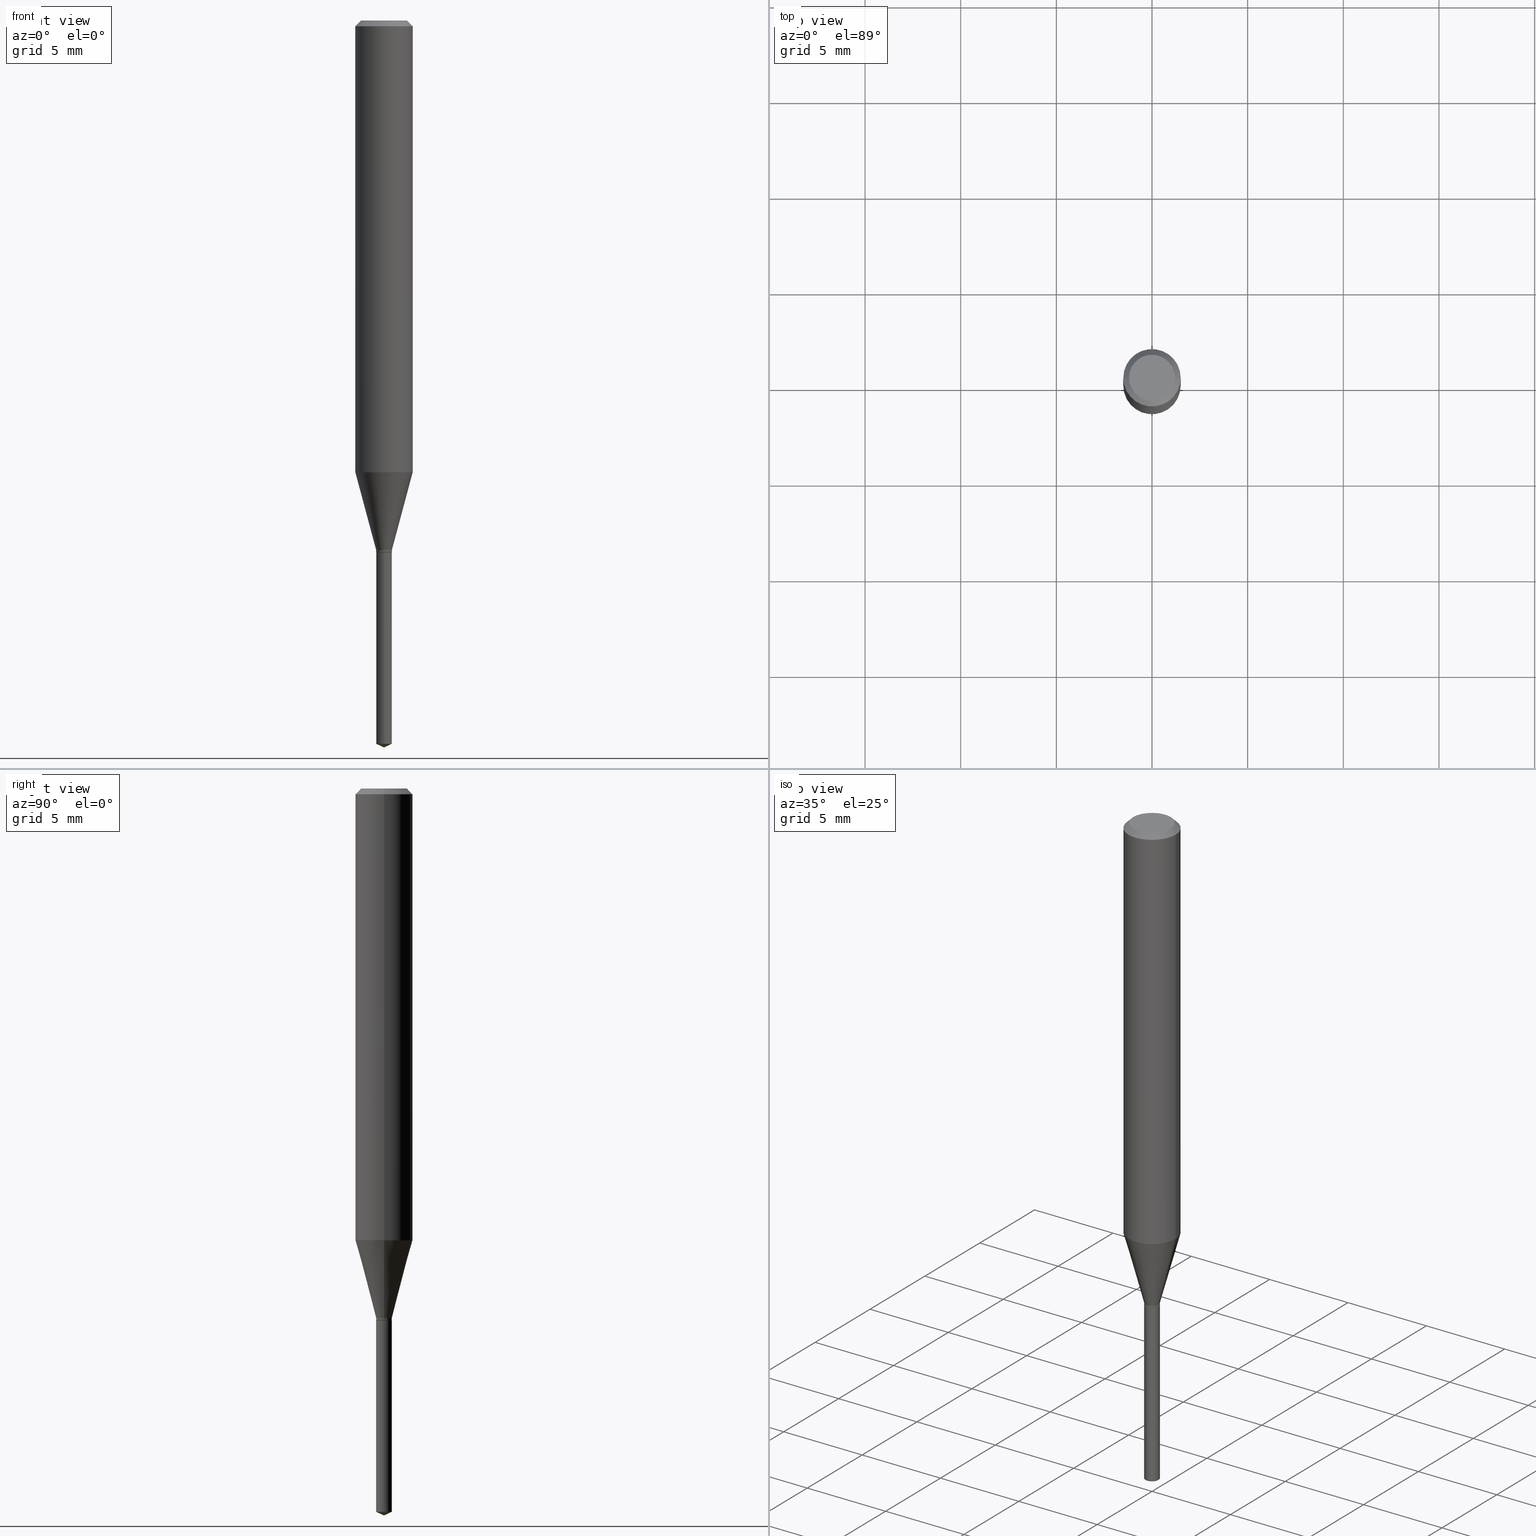
[diagram: canonical four-view strip — front | top / right | iso, engineering-drawing reading convention]
A machine part, canonical four-view strip (front | top / right | iso — engineering-drawing reading convention). The complete STEP part file that produces these views, byte-faithful:
ISO-10303-21;
HEADER;
FILE_DESCRIPTION (( 'STEP AP203' ),
    '1' );
FILE_NAME ('07459.STEP',
    '2024-04-23T21:40:39',
    ( '' ),
    ( '' ),
    'SwSTEP 2.0',
    'SolidWorks 2023',
    '' );
FILE_SCHEMA (( 'CONFIG_CONTROL_DESIGN' ));
ENDSEC;

DATA;
#1 = DIRECTION ( 'NONE',  ( -6.982962677686265922E-15, -1.000000000000000000, 3.520397390770365123E-15 ) ) ;
#2 = ORIENTED_EDGE ( 'NONE', *, *, #358, .T. ) ;
#3 = AXIS2_PLACEMENT_3D ( 'NONE', #360, #94, #160 ) ;
#4 = DIRECTION ( 'NONE',  ( -1.000000000000000000, 6.982962677686265922E-15, -4.876176775795935793E-29 ) ) ;
#5 = EDGE_CURVE ( 'NONE', #388, #339, #249, .T. ) ;
#6 = CARTESIAN_POINT ( 'NONE',  ( 3.658668015054778287E-29, -5.223602213574301462E-15, -1.496099999999999985 ) ) ;
#7 = SHAPE_DEFINITION_REPRESENTATION ( #450, #448 ) ;
#8 = LINE ( 'NONE', #302, #411 ) ;
#9 = ORIENTED_EDGE ( 'NONE', *, *, #130, .F. ) ;
#10 = CARTESIAN_POINT ( 'NONE',  ( -0.01615000000000000116, -3.697421247990632246E-15, -1.089699999999999891 ) ) ;
#11 = VERTEX_POINT ( 'NONE', #79 ) ;
#12 = DIRECTION ( 'NONE',  ( 6.982962677686265922E-15, 1.000000000000000000, -3.491479321953280158E-15 ) ) ;
#13 = APPROVAL_PERSON_ORGANIZATION ( #133, #401, #176 ) ;
#14 = ADVANCED_FACE ( 'NONE', ( #105 ), #460, .T. ) ;
#15 = ORIENTED_EDGE ( 'NONE', *, *, #201, .F. ) ;
#16 = LINE ( 'NONE', #90, #66 ) ;
#17 = VERTEX_POINT ( 'NONE', #118 ) ;
#18 = PERSON_AND_ORGANIZATION_ROLE ( 'classification_officer' ) ;
#19 = DIRECTION ( 'NONE',  ( -1.000000000000000000, 6.982962677686266711E-15, 0.000000000000000000 ) ) ;
#20 = EDGE_LOOP ( 'NONE', ( #454, #2, #440, #473 ) ) ;
#21 = DIRECTION ( 'NONE',  ( 2.445468806185136597E-29, -3.491481338843145583E-15, -1.000000000000000000 ) ) ;
#22 = AXIS2_PLACEMENT_3D ( 'NONE', #385, #190, #1 ) ;
#23 = AXIS2_PLACEMENT_3D ( 'NONE', #298, #78, #375 ) ;
#24 = APPROVAL_ROLE ( '' ) ;
#25 = DIRECTION ( 'NONE',  ( -1.000000000000000000, 6.982962677686266711E-15, 0.000000000000000000 ) ) ;
#26 = PRODUCT_DEFINITION ( 'UNKNOWN', '', #146, #92 ) ;
#27 = VECTOR ( 'NONE', #459, 39.37007874015748854 ) ;
#28 = CIRCLE ( 'NONE', #335, 0.01565000000000000072 ) ;
#29 = PRODUCT ( '07459', '07459', '', ( #334 ) ) ;
#30 = PERSON_AND_ORGANIZATION_ROLE ( 'design_supplier' ) ;
#31 = CC_DESIGN_PERSON_AND_ORGANIZATION_ASSIGNMENT ( #178, #446, ( #26 ) ) ;
#32 = VERTEX_POINT ( 'NONE', #183 ) ;
#33 = DIRECTION ( 'NONE',  ( 1.000000000000000000, -6.982962677686266711E-15, 0.000000000000000000 ) ) ;
#34 = FACE_OUTER_BOUND ( 'NONE', #50, .T. ) ;
#35 = CARTESIAN_POINT ( 'NONE',  ( 2.888098660104663328E-31, -4.123439461173779030E-17, -0.01181000000000006871 ) ) ;
#36 = ADVANCED_FACE ( 'NONE', ( #34 ), #235, .T. ) ;
#37 = CARTESIAN_POINT ( 'NONE',  ( 8.265746106709734507E-48, -1.180129479067563789E-33, -3.380025165646692144E-19 ) ) ;
#38 = ORIENTED_EDGE ( 'NONE', *, *, #333, .T. ) ;
#39 = DIRECTION ( 'NONE',  ( -2.445470214571802396E-29, 3.491479321953280158E-15, 1.000000000000000000 ) ) ;
#40 = VERTEX_POINT ( 'NONE', #76 ) ;
#41 = CIRCLE ( 'NONE', #188, 0.01614999999999999769 ) ;
#42 = AXIS2_PLACEMENT_3D ( 'NONE', #479, #21, #19 ) ;
#43 = CARTESIAN_POINT ( 'NONE',  ( 2.676565608369631794E-29, -3.821426325363822773E-15, -1.094499999999999806 ) ) ;
#44 = ORIENTED_EDGE ( 'NONE', *, *, #149, .T. ) ;
#45 = LINE ( 'NONE', #348, #89 ) ;
#46 = DIRECTION ( 'NONE',  ( -2.445470214571802116E-29, 3.491479321953280158E-15, 1.000000000000000000 ) ) ;
#47 = ORIENTED_EDGE ( 'NONE', *, *, #59, .T. ) ;
#48 = LINE ( 'NONE', #56, #102 ) ;
#49 = DIRECTION ( 'NONE',  ( 1.000000000000000000, -6.982962677686266711E-15, 4.876176775795935793E-29 ) ) ;
#50 = EDGE_LOOP ( 'NONE', ( #280, #359, #239 ) ) ;
#51 = AXIS2_PLACEMENT_3D ( 'NONE', #489, #270, #423 ) ;
#52 = DIRECTION ( 'NONE',  ( -2.445468806185136877E-29, 3.491481338843145188E-15, 1.000000000000000000 ) ) ;
#53 = DIRECTION ( 'NONE',  ( -2.445468806185136597E-29, 3.491481338843145583E-15, 1.000000000000000000 ) ) ;
#54 = EDGE_LOOP ( 'NONE', ( #237, #422 ) ) ;
#55 = SECURITY_CLASSIFICATION_LEVEL ( 'unclassified' ) ;
#56 = CARTESIAN_POINT ( 'NONE',  ( 0.05905000000000005383, -4.123439461173744271E-16, 2.879382386107502672E-30 ) ) ;
#57 = EDGE_LOOP ( 'NONE', ( #310, #112, #378, #386 ) ) ;
#58 = FACE_OUTER_BOUND ( 'NONE', #354, .T. ) ;
#59 = EDGE_CURVE ( 'NONE', #11, #40, #8, .T. ) ;
#60 = FACE_OUTER_BOUND ( 'NONE', #202, .T. ) ;
#61 = DATE_AND_TIME ( #131, #362 ) ;
#62 = DATE_TIME_ROLE ( 'classification_date' ) ;
#63 = APPLICATION_PROTOCOL_DEFINITION ( 'international standard', 'config_control_design', 1994, #273 ) ;
#64 = EDGE_CURVE ( 'NONE', #299, #11, #463, .T. ) ;
#65 = DATE_TIME_ROLE ( 'creation_date' ) ;
#66 = VECTOR ( 'NONE', #128, 39.37007874015747433 ) ;
#67 = APPLICATION_PROTOCOL_DEFINITION ( 'international standard', 'config_control_design', 1994, #169 ) ;
#68 = ADVANCED_FACE ( 'NONE', ( #144 ), #233, .T. ) ;
#69 =( NAMED_UNIT ( * ) SI_UNIT ( $, .STERADIAN. ) SOLID_ANGLE_UNIT ( ) );
#70 = ORIENTED_EDGE ( 'NONE', *, *, #161, .F. ) ;
#71 = VECTOR ( 'NONE', #39, 39.37007874015748143 ) ;
#72 = VECTOR ( 'NONE', #52, 39.37007874015748143 ) ;
#73 = CARTESIAN_POINT ( 'NONE',  ( 0.01614999999999999769, -3.932455431939034345E-15, -1.093999999999999861 ) ) ;
#74 = ORIENTED_EDGE ( 'NONE', *, *, #240, .F. ) ;
#75 = CARTESIAN_POINT ( 'NONE',  ( 0.05904999999999999832, -4.463468013801466955E-16, -0.01181000000000006871 ) ) ;
#76 = CARTESIAN_POINT ( 'NONE',  ( -1.127748472446064261E-16, -0.01615000000000382102, -1.094499999999999806 ) ) ;
#77 = EDGE_LOOP ( 'NONE', ( #205, #228, #47, #15 ) ) ;
#78 = DIRECTION ( 'NONE',  ( -2.438088387897960049E-29, 3.491481338843145188E-15, 1.000000000000000000 ) ) ;
#79 = CARTESIAN_POINT ( 'NONE',  ( -1.127748472445968119E-16, -0.01615000000000519839, -1.488569131320796934 ) ) ;
#80 = EDGE_LOOP ( 'NONE', ( #162, #409, #70, #303 ) ) ;
#81 = CC_DESIGN_APPROVAL ( #113, ( #26 ) ) ;
#82 = CARTESIAN_POINT ( 'NONE',  ( 1.147526518252926484E-16, 0.01614999999999618130, -1.094499999999999806 ) ) ;
#83 = DIRECTION ( 'NONE',  ( 1.000000000000000000, -6.982962677686274599E-15, 0.000000000000000000 ) ) ;
#84 = ORIENTED_EDGE ( 'NONE', *, *, #358, .F. ) ;
#85 = CYLINDRICAL_SURFACE ( 'NONE', #466, 0.01614999999999999769 ) ;
#86 = ORIENTED_EDGE ( 'NONE', *, *, #432, .T. ) ;
#87 = FACE_OUTER_BOUND ( 'NONE', #80, .T. ) ;
#88 = VERTEX_POINT ( 'NONE', #73 ) ;
#89 = VECTOR ( 'NONE', #193, 39.37007874015748854 ) ;
#90 = CARTESIAN_POINT ( 'NONE',  ( -0.01615000000000000116, -3.689914563112119387E-15, -1.089699999999999891 ) ) ;
#91 = EDGE_CURVE ( 'NONE', #115, #285, #124, .T. ) ;
#92 = DESIGN_CONTEXT ( 'detailed design', #169, 'design' ) ;
#93 = ORIENTED_EDGE ( 'NONE', *, *, #252, .F. ) ;
#94 = DIRECTION ( 'NONE',  ( -2.445470214571802116E-29, 3.491479321953280158E-15, 1.000000000000000000 ) ) ;
#95 = PLANE ( 'NONE',  #175 ) ;
#96 = CARTESIAN_POINT ( 'NONE',  ( 0.000000000000000000, 0.000000000000000000, 0.000000000000000000 ) ) ;
#97 = PERSON_AND_ORGANIZATION_ROLE ( 'design_owner' ) ;
#98 = CC_DESIGN_APPROVAL ( #401, ( #210 ) ) ;
#99 =( LENGTH_UNIT ( ) NAMED_UNIT ( * ) SI_UNIT ( $, .METRE. ) );
#100 = COORDINATED_UNIVERSAL_TIME_OFFSET ( 5, 0, .BEHIND. ) ;
#101 = APPROVAL_DATE_TIME ( #449, #347 ) ;
#102 = VECTOR ( 'NONE', #164, 39.37007874015748143 ) ;
#103 = CARTESIAN_POINT ( 'NONE',  ( -0.01565000000000000072, -3.710226387217366719E-15, -1.094499999999999806 ) ) ;
#104 = CARTESIAN_POINT ( 'NONE',  ( 3.658667988020872822E-29, -5.223602213574301462E-15, -1.496099999999999985 ) ) ;
#105 = FACE_OUTER_BOUND ( 'NONE', #431, .T. ) ;
#106 = VECTOR ( 'NONE', #260, 39.37007874015748854 ) ;
#107 = LINE ( 'NONE', #75, #126 ) ;
#108 = CARTESIAN_POINT ( 'NONE',  ( 3.640249931496824443E-29, -5.197310548790477379E-15, -1.488569131320796934 ) ) ;
#109 = VERTEX_POINT ( 'NONE', #458 ) ;
#110 = FACE_OUTER_BOUND ( 'NONE', #344, .T. ) ;
#111 = DIRECTION ( 'NONE',  ( -2.445468806185136597E-29, 3.491481338843145583E-15, 1.000000000000000000 ) ) ;
#112 = ORIENTED_EDGE ( 'NONE', *, *, #197, .F. ) ;
#113 = APPROVAL ( #173, 'UNSPECIFIED' ) ;
#114 = LINE ( 'NONE', #336, #199 ) ;
#115 = VERTEX_POINT ( 'NONE', #453 ) ;
#116 = AXIS2_PLACEMENT_3D ( 'NONE', #122, #357, #25 ) ;
#117 = DIRECTION ( 'NONE',  ( 1.000000000000000000, -6.982962677686267499E-15, 4.876176775795935793E-29 ) ) ;
#118 = CARTESIAN_POINT ( 'NONE',  ( 0.01565000000000000072, -3.930709691269612841E-15, -1.094499999999999806 ) ) ;
#119 = DIRECTION ( 'NONE',  ( -2.445468806185136597E-29, 3.491481338843145583E-15, 1.000000000000000000 ) ) ;
#120 = DIRECTION ( 'NONE',  ( -2.445468806185136877E-29, 3.491481338843145188E-15, 1.000000000000000000 ) ) ;
#121 = ORIENTED_EDGE ( 'NONE', *, *, #333, .F. ) ;
#122 = CARTESIAN_POINT ( 'NONE',  ( 2.888098660104663328E-31, -4.123439461173779030E-17, -0.01181000000000006871 ) ) ;
#123 = ORIENTED_EDGE ( 'NONE', *, *, #201, .T. ) ;
#124 = CIRCLE ( 'NONE', #261, 0.05905000000000010935 ) ;
#125 = DIRECTION ( 'NONE',  ( 1.000000000000000000, -6.982962677686273810E-15, 0.000000000000000000 ) ) ;
#126 = VECTOR ( 'NONE', #412, 39.37007874015748143 ) ;
#127 = ORIENTED_EDGE ( 'NONE', *, *, #326, .F. ) ;
#128 = DIRECTION ( 'NONE',  ( -0.2588190451025213501, 5.211531920934551042E-15, 0.9659258262890682012 ) ) ;
#129 = APPROVAL_STATUS ( 'not_yet_approved' ) ;
#130 = EDGE_CURVE ( 'NONE', #159, #244, #315, .T. ) ;
#131 = CALENDAR_DATE ( 2024, 23, 4 ) ;
#132 = AXIS2_PLACEMENT_3D ( 'NONE', #340, #382, #226 ) ;
#133 = PERSON_AND_ORGANIZATION ( #369, #236 ) ;
#134 = COORDINATED_UNIVERSAL_TIME_OFFSET ( 5, 0, .BEHIND. ) ;
#135 = DIRECTION ( 'NONE',  ( -2.445468806185136597E-29, 3.491481338843145583E-15, 1.000000000000000000 ) ) ;
#136 = EDGE_CURVE ( 'NONE', #32, #11, #476, .T. ) ;
#137 = AXIS2_PLACEMENT_3D ( 'NONE', #238, #46, #194 ) ;
#138 = CC_DESIGN_APPROVAL ( #347, ( #146 ) ) ;
#139 = ORIENTED_EDGE ( 'NONE', *, *, #268, .F. ) ;
#140 = DIRECTION ( 'NONE',  ( 1.000000000000000000, -6.982962677686274599E-15, 0.000000000000000000 ) ) ;
#141 = EDGE_CURVE ( 'NONE', #370, #159, #114, .T. ) ;
#142 = ORIENTED_EDGE ( 'NONE', *, *, #365, .T. ) ;
#143 = DIRECTION ( 'NONE',  ( -2.445470214571802116E-29, 3.491479321953280158E-15, 1.000000000000000000 ) ) ;
#144 = FACE_OUTER_BOUND ( 'NONE', #464, .T. ) ;
#145 = AXIS2_PLACEMENT_3D ( 'NONE', #416, #457, #267 ) ;
#146 = PRODUCT_DEFINITION_FORMATION_WITH_SPECIFIED_SOURCE ( 'ANY', '', #29, .NOT_KNOWN. ) ;
#147 = CARTESIAN_POINT ( 'NONE',  ( 0.01615000000000000116, -3.917442062182008625E-15, -1.089699999999999891 ) ) ;
#148 = CARTESIAN_POINT ( 'NONE',  ( 4.132873053354867254E-48, -5.900647395337818946E-34, -1.690012582823346072E-19 ) ) ;
#149 = EDGE_CURVE ( 'NONE', #32, #246, #379, .T. ) ;
#150 = CARTESIAN_POINT ( 'NONE',  ( 2.676565608369631794E-29, -3.821426325363822773E-15, -1.094499999999999806 ) ) ;
#151 = CARTESIAN_POINT ( 'NONE',  ( 2.273295624663911029E-29, -3.245663666252026879E-15, -0.9295950203552949542 ) ) ;
#152 = ORIENTED_EDGE ( 'NONE', *, *, #91, .T. ) ;
#153 = CARTESIAN_POINT ( 'NONE',  ( 0.000000000000000000, 0.000000000000000000, 0.000000000000000000 ) ) ;
#154 = DIRECTION ( 'NONE',  ( -2.445470214571802396E-29, 3.491479321953280158E-15, 1.000000000000000000 ) ) ;
#155 = EDGE_LOOP ( 'NONE', ( #321, #478, #471, #139 ) ) ;
#156 = AXIS2_PLACEMENT_3D ( 'NONE', #439, #143, #186 ) ;
#157 = AXIS2_PLACEMENT_3D ( 'NONE', #35, #189, #33 ) ;
#158 = DIRECTION ( 'NONE',  ( -2.445468806185136597E-29, 3.491481338843145583E-15, 1.000000000000000000 ) ) ;
#159 = VERTEX_POINT ( 'NONE', #10 ) ;
#160 = DIRECTION ( 'NONE',  ( -6.982962677686265922E-15, -1.000000000000000000, 0.000000000000000000 ) ) ;
#161 = EDGE_CURVE ( 'NONE', #244, #159, #174, .T. ) ;
#162 = ORIENTED_EDGE ( 'NONE', *, *, #470, .T. ) ;
#163 = COORDINATED_UNIVERSAL_TIME_OFFSET ( 5, 0, .BEHIND. ) ;
#164 = DIRECTION ( 'NONE',  ( -2.445468806185136877E-29, 3.491481338843145188E-15, 1.000000000000000000 ) ) ;
#165 = ORIENTED_EDGE ( 'NONE', *, *, #408, .T. ) ;
#166 = AXIS2_PLACEMENT_3D ( 'NONE', #314, #263, #223 ) ;
#167 = DIRECTION ( 'NONE',  ( -2.445468806185136597E-29, 3.491481338843145583E-15, 1.000000000000000000 ) ) ;
#168 = CIRCLE ( 'NONE', #296, 0.01614999999999999769 ) ;
#169 = APPLICATION_CONTEXT ( 'configuration controlled 3d designs of mechanical parts and assemblies' ) ;
#170 =( NAMED_UNIT ( * ) PLANE_ANGLE_UNIT ( ) SI_UNIT ( $, .RADIAN. ) );
#171 = EDGE_CURVE ( 'NONE', #109, #219, #434, .T. ) ;
#172 = CYLINDRICAL_SURFACE ( 'NONE', #413, 0.05905000000000005383 ) ;
#173 = APPROVAL_STATUS ( 'not_yet_approved' ) ;
#174 = CIRCLE ( 'NONE', #404, 0.01615000000000000116 ) ;
#175 = AXIS2_PLACEMENT_3D ( 'NONE', #209, #363, #12 ) ;
#176 = APPROVAL_ROLE ( '' ) ;
#177 = EDGE_CURVE ( 'NONE', #370, #88, #41, .T. ) ;
#178 = PERSON_AND_ORGANIZATION ( #369, #236 ) ;
#179 = CIRCLE ( 'NONE', #137, 0.01615000000000000116 ) ;
#180 = LOCAL_TIME ( 17, 40, 39.00000000000000000, #163 ) ;
#181 = ORIENTED_EDGE ( 'NONE', *, *, #289, .F. ) ;
#182 = LINE ( 'NONE', #300, #283 ) ;
#183 = CARTESIAN_POINT ( 'NONE',  ( 1.147526518252925498E-16, 0.01614999999999480393, -1.488569131320796934 ) ) ;
#184 = DIRECTION ( 'NONE',  ( 1.000000000000000000, -6.982962677686266711E-15, 4.876185090822587894E-29 ) ) ;
#185 = ORIENTED_EDGE ( 'NONE', *, *, #220, .T. ) ;
#186 = DIRECTION ( 'NONE',  ( -6.982962677686265922E-15, -1.000000000000000000, 0.000000000000000000 ) ) ;
#187 = CARTESIAN_POINT ( 'NONE',  ( 2.675342873966538993E-29, -3.819680584694400481E-15, -1.093999999999999861 ) ) ;
#188 = AXIS2_PLACEMENT_3D ( 'NONE', #187, #307, #374 ) ;
#189 = DIRECTION ( 'NONE',  ( -2.445468806185136597E-29, 3.491481338843145583E-15, 1.000000000000000000 ) ) ;
#190 = DIRECTION ( 'NONE',  ( -2.445470214571802116E-29, 3.491479321953280158E-15, 1.000000000000000000 ) ) ;
#191 = ORIENTED_EDGE ( 'NONE', *, *, #234, .T. ) ;
#192 = ADVANCED_FACE ( 'NONE', ( #227 ), #377, .F. ) ;
#193 = DIRECTION ( 'NONE',  ( 0.7071067811865202613, -2.468850131081971887E-15, 0.7071067811865746622 ) ) ;
#194 = DIRECTION ( 'NONE',  ( -6.982962677686265922E-15, -1.000000000000000000, 0.000000000000000000 ) ) ;
#195 = ORIENTED_EDGE ( 'NONE', *, *, #408, .F. ) ;
#196 = CARTESIAN_POINT ( 'NONE',  ( 2.664827358099943030E-29, -3.804667214937374761E-15, -1.089699999999999891 ) ) ;
#197 = EDGE_CURVE ( 'NONE', #219, #109, #371, .T. ) ;
#198 = ORIENTED_EDGE ( 'NONE', *, *, #177, .F. ) ;
#199 = VECTOR ( 'NONE', #309, 39.37007874015748143 ) ;
#200 = CARTESIAN_POINT ( 'NONE',  ( -0.01614999999999999769, -3.697421247990632246E-15, -1.093999999999999861 ) ) ;
#201 = EDGE_CURVE ( 'NONE', #246, #40, #179, .T. ) ;
#202 = EDGE_LOOP ( 'NONE', ( #231, #123 ) ) ;
#203 = PERSON_AND_ORGANIZATION ( #369, #236 ) ;
#204 = CARTESIAN_POINT ( 'NONE',  ( 2.675342873966538993E-29, -3.819680584694400481E-15, -1.093999999999999861 ) ) ;
#205 = ORIENTED_EDGE ( 'NONE', *, *, #149, .F. ) ;
#206 = DIRECTION ( 'NONE',  ( 0.2588190451025213501, 1.565188264969621968E-15, 0.9659258262890682012 ) ) ;
#207 = CC_DESIGN_PERSON_AND_ORGANIZATION_ASSIGNMENT ( #254, #97, ( #29 ) ) ;
#208 = AXIS2_PLACEMENT_3D ( 'NONE', #96, #53, #49 ) ;
#209 = CARTESIAN_POINT ( 'NONE',  ( 2.676565608369631794E-29, -3.821426325363822773E-15, -1.094499999999999806 ) ) ;
#210 = SECURITY_CLASSIFICATION ( '', '', #55 ) ;
#211 = CARTESIAN_POINT ( 'NONE',  ( -0.04724000000000000421, 3.504923541997677355E-16, -3.380025165670481712E-19 ) ) ;
#212 =( CONVERSION_BASED_UNIT ( 'INCH', #288 ) LENGTH_UNIT ( ) NAMED_UNIT ( #380 ) );
#213 = FACE_OUTER_BOUND ( 'NONE', #242, .T. ) ;
#214 = AXIS2_PLACEMENT_3D ( 'NONE', #337, #111, #428 ) ;
#215 = LOCAL_TIME ( 17, 40, 39.00000000000000000, #100 ) ;
#216 = ADVANCED_FACE ( 'NONE', ( #349 ), #481, .T. ) ;
#217 = PERSON_AND_ORGANIZATION_ROLE ( 'creator' ) ;
#218 = CC_DESIGN_DATE_AND_TIME_ASSIGNMENT ( #474, #62, ( #210 ) ) ;
#219 = VERTEX_POINT ( 'NONE', #211 ) ;
#220 = EDGE_CURVE ( 'NONE', #11, #32, #272, .T. ) ;
#221 = FACE_OUTER_BOUND ( 'NONE', #54, .T. ) ;
#222 = AXIS2_PLACEMENT_3D ( 'NONE', #350, #119, #278 ) ;
#223 = DIRECTION ( 'NONE',  ( 1.000000000000000000, -6.982962677686266711E-15, 4.876185090822587894E-29 ) ) ;
#224 = AXIS2_PLACEMENT_3D ( 'NONE', #433, #241, #389 ) ;
#225 = EDGE_LOOP ( 'NONE', ( #325, #346 ) ) ;
#226 = DIRECTION ( 'NONE',  ( 1.000000000000000000, -6.982962677686273810E-15, 0.000000000000000000 ) ) ;
#227 = FACE_OUTER_BOUND ( 'NONE', #225, .T. ) ;
#228 = ORIENTED_EDGE ( 'NONE', *, *, #136, .T. ) ;
#229 = FACE_OUTER_BOUND ( 'NONE', #468, .T. ) ;
#230 = DIRECTION ( 'NONE',  ( -6.982962677686265922E-15, -1.000000000000000000, 0.000000000000000000 ) ) ;
#231 = ORIENTED_EDGE ( 'NONE', *, *, #326, .T. ) ;
#232 = LINE ( 'NONE', #6, #106 ) ;
#233 = CYLINDRICAL_SURFACE ( 'NONE', #214, 0.01614999999999999769 ) ;
#234 = EDGE_CURVE ( 'NONE', #426, #17, #424, .T. ) ;
#235 = CONICAL_SURFACE ( 'NONE', #22, 84.42940631927646677, 1.134464013796325554 ) ;
#236 = ORGANIZATION ( 'UNSPECIFIED', 'UNSPECIFIED', '' ) ;
#237 = ORIENTED_EDGE ( 'NONE', *, *, #403, .F. ) ;
#238 = CARTESIAN_POINT ( 'NONE',  ( 2.676565608369631794E-29, -3.821426325363822773E-15, -1.094499999999999806 ) ) ;
#239 = ORIENTED_EDGE ( 'NONE', *, *, #136, .F. ) ;
#240 = EDGE_CURVE ( 'NONE', #285, #115, #484, .T. ) ;
#241 = DIRECTION ( 'NONE',  ( -2.445470214571802116E-29, 3.491479321953280158E-15, 1.000000000000000000 ) ) ;
#242 = EDGE_LOOP ( 'NONE', ( #84, #152, #86, #181 ) ) ;
#243 = DIRECTION ( 'NONE',  ( -2.445468806185136597E-29, 3.491481338843145583E-15, 1.000000000000000000 ) ) ;
#244 = VERTEX_POINT ( 'NONE', #147 ) ;
#245 = LOCAL_TIME ( 17, 40, 39.00000000000000000, #332 ) ;
#246 = VERTEX_POINT ( 'NONE', #82 ) ;
#247 = CARTESIAN_POINT ( 'NONE',  ( 0.01614999999999999769, -1.127748472446331981E-16, 7.875025492910434806E-31 ) ) ;
#248 = DIRECTION ( 'NONE',  ( -2.445468806185136597E-29, 3.491481338843145583E-15, 1.000000000000000000 ) ) ;
#249 = CIRCLE ( 'NONE', #222, 0.05904999999999999832 ) ;
#250 = PERSON_AND_ORGANIZATION ( #369, #236 ) ;
#251 = CONICAL_SURFACE ( 'NONE', #42, 0.05904999999999999832, 0.7853981633974452814 ) ;
#252 = EDGE_CURVE ( 'NONE', #426, #370, #259, .T. ) ;
#253 = CALENDAR_DATE ( 2024, 23, 4 ) ;
#254 = PERSON_AND_ORGANIZATION ( #369, #236 ) ;
#255 = VECTOR ( 'NONE', #414, 39.37007874015748143 ) ;
#256 = PRODUCT_RELATED_PRODUCT_CATEGORY ( 'detail', '', ( #29 ) ) ;
#257 = ADVANCED_FACE ( 'NONE', ( #110 ), #366, .T. ) ;
#258 = COORDINATED_UNIVERSAL_TIME_OFFSET ( 5, 0, .BEHIND. ) ;
#259 = LINE ( 'NONE', #103, #27 ) ;
#260 = DIRECTION ( 'NONE',  ( 6.439704144417058752E-15, 0.9063077870366562649, 0.4226182617406860076 ) ) ;
#261 = AXIS2_PLACEMENT_3D ( 'NONE', #151, #305, #269 ) ;
#262 = AXIS2_PLACEMENT_3D ( 'NONE', #475, #248, #125 ) ;
#263 = DIRECTION ( 'NONE',  ( -2.445468806185136597E-29, 3.491481338843145583E-15, 1.000000000000000000 ) ) ;
#264 = ORIENTED_EDGE ( 'NONE', *, *, #161, .T. ) ;
#265 = DIRECTION ( 'NONE',  ( -2.445468806185136597E-29, 3.491481338843145583E-15, 1.000000000000000000 ) ) ;
#266 = ORIENTED_EDGE ( 'NONE', *, *, #64, .F. ) ;
#267 = DIRECTION ( 'NONE',  ( 1.000000000000000000, -6.982962677686274599E-15, 0.000000000000000000 ) ) ;
#268 = EDGE_CURVE ( 'NONE', #17, #88, #45, .T. ) ;
#269 = DIRECTION ( 'NONE',  ( 1.000000000000000000, -6.982962677686267499E-15, 0.000000000000000000 ) ) ;
#270 = DIRECTION ( 'NONE',  ( -2.445468806185136597E-29, 3.491481338843145583E-15, 1.000000000000000000 ) ) ;
#271 = CARTESIAN_POINT ( 'NONE',  ( 1.147526518252829356E-16, 0.01614999999999617783, -1.094499999999999806 ) ) ;
#272 = CIRCLE ( 'NONE', #156, 0.01615000000000000116 ) ;
#273 = APPLICATION_CONTEXT ( 'configuration controlled 3d designs of mechanical parts and assemblies' ) ;
#274 = VECTOR ( 'NONE', #206, 39.37007874015747433 ) ;
#275 = ORIENTED_EDGE ( 'NONE', *, *, #171, .F. ) ;
#276 = DIRECTION ( 'NONE',  ( -6.982962677686265922E-15, -1.000000000000000000, 0.000000000000000000 ) ) ;
#277 = CARTESIAN_POINT ( 'NONE',  ( 2.664827358099943030E-29, -3.804667214937374761E-15, -1.089699999999999891 ) ) ;
#278 = DIRECTION ( 'NONE',  ( 1.000000000000000000, -6.982962677686266711E-15, 0.000000000000000000 ) ) ;
#279 = DIRECTION ( 'NONE',  ( 1.000000000000000000, -6.982962677686273810E-15, 0.000000000000000000 ) ) ;
#280 = ORIENTED_EDGE ( 'NONE', *, *, #297, .F. ) ;
#281 = LINE ( 'NONE', #323, #274 ) ;
#282 = ORIENTED_EDGE ( 'NONE', *, *, #177, .T. ) ;
#283 = VECTOR ( 'NONE', #452, 39.37007874015748143 ) ;
#284 = FACE_OUTER_BOUND ( 'NONE', #77, .T. ) ;
#285 = VERTEX_POINT ( 'NONE', #410 ) ;
#286 = DIRECTION ( 'NONE',  ( -2.445468806185136597E-29, 3.491481338843145583E-15, 1.000000000000000000 ) ) ;
#287 = ADVANCED_FACE ( 'NONE', ( #221 ), #419, .F. ) ;
#288 = LENGTH_MEASURE_WITH_UNIT ( LENGTH_MEASURE( 0.02539999999999999897 ), #99 );
#289 = EDGE_CURVE ( 'NONE', #339, #388, #405, .T. ) ;
#290 = CARTESIAN_POINT ( 'NONE',  ( 0.000000000000000000, 0.000000000000000000, 0.000000000000000000 ) ) ;
#291 = LOCAL_TIME ( 17, 40, 39.00000000000000000, #258 ) ;
#292 = EDGE_CURVE ( 'NONE', #219, #339, #182, .T. ) ;
#293 = PERSON_AND_ORGANIZATION ( #369, #236 ) ;
#294 = DIRECTION ( 'NONE',  ( 1.000000000000000000, -6.982962677686266711E-15, 4.876176775795935793E-29 ) ) ;
#295 = AXIS2_PLACEMENT_3D ( 'NONE', #490, #265, #140 ) ;
#296 = AXIS2_PLACEMENT_3D ( 'NONE', #204, #158, #318 ) ;
#297 = EDGE_CURVE ( 'NONE', #299, #32, #232, .T. ) ;
#298 = CARTESIAN_POINT ( 'NONE',  ( 2.676565608369631794E-29, -3.821426325363822773E-15, -1.094499999999999806 ) ) ;
#299 = VERTEX_POINT ( 'NONE', #104 ) ;
#300 = CARTESIAN_POINT ( 'NONE',  ( -0.05904999999999999832, 3.711095515056362547E-16, -0.01181000000000006871 ) ) ;
#301 = APPROVAL_DATE_TIME ( #304, #401 ) ;
#302 = CARTESIAN_POINT ( 'NONE',  ( -1.127748472446064261E-16, -0.01615000000000382102, -1.094499999999999806 ) ) ;
#303 = ORIENTED_EDGE ( 'NONE', *, *, #365, .F. ) ;
#304 = DATE_AND_TIME ( #407, #291 ) ;
#305 = DIRECTION ( 'NONE',  ( -2.445468806185136597E-29, 3.491481338843145583E-15, 1.000000000000000000 ) ) ;
#306 = EDGE_CURVE ( 'NONE', #109, #388, #107, .T. ) ;
#307 = DIRECTION ( 'NONE',  ( -2.445468806185136597E-29, 3.491481338843145583E-15, 1.000000000000000000 ) ) ;
#308 = DIRECTION ( 'NONE',  ( -2.445468806185136597E-29, 3.491481338843145583E-15, 1.000000000000000000 ) ) ;
#309 = DIRECTION ( 'NONE',  ( -2.445468806185136877E-29, 3.491481338843145188E-15, 1.000000000000000000 ) ) ;
#310 = ORIENTED_EDGE ( 'NONE', *, *, #306, .F. ) ;
#311 = CARTESIAN_POINT ( 'NONE',  ( -0.05904999999999999832, -1.223873544965542219E-15, -0.01181000000000006871 ) ) ;
#312 = MANIFOLD_SOLID_BREP ( 'Body-Move/Copy2[1]', #455 ) ;
#313 = ADVANCED_FACE ( 'NONE', ( #229 ), #331, .T. ) ;
#314 = CARTESIAN_POINT ( 'NONE',  ( 8.265746106709734507E-48, -1.180129479067563789E-33, -3.380025165646692144E-19 ) ) ;
#315 = CIRCLE ( 'NONE', #295, 0.01615000000000000116 ) ;
#316 = CONICAL_SURFACE ( 'NONE', #116, 0.05904999999999999832, 0.7853981633974452814 ) ;
#317 = ORIENTED_EDGE ( 'NONE', *, *, #130, .T. ) ;
#318 = DIRECTION ( 'NONE',  ( 1.000000000000000000, -6.982962677686276177E-15, 0.000000000000000000 ) ) ;
#319 = ORIENTED_EDGE ( 'NONE', *, *, #59, .F. ) ;
#320 = LINE ( 'NONE', #472, #72 ) ;
#321 = ORIENTED_EDGE ( 'NONE', *, *, #403, .T. ) ;
#322 = CALENDAR_DATE ( 2024, 23, 4 ) ;
#323 = CARTESIAN_POINT ( 'NONE',  ( 0.01615000000000000116, -3.917442062182008625E-15, -1.089699999999999891 ) ) ;
#324 = UNCERTAINTY_MEASURE_WITH_UNIT (LENGTH_MEASURE( 1.000000000000000082E-05 ), #212, 'distance_accuracy_value', 'NONE');
#325 = ORIENTED_EDGE ( 'NONE', *, *, #197, .T. ) ;
#326 = EDGE_CURVE ( 'NONE', #40, #246, #353, .T. ) ;
#327 = DIRECTION ( 'NONE',  ( 1.000000000000000000, -6.982962677686273810E-15, 0.000000000000000000 ) ) ;
#328 = DIRECTION ( 'NONE',  ( 0.000000000000000000, 0.000000000000000000, 1.000000000000000000 ) ) ;
#329 = ADVANCED_FACE ( 'NONE', ( #87 ), #85, .T. ) ;
#330 = APPROVAL_STATUS ( 'not_yet_approved' ) ;
#331 = CONICAL_SURFACE ( 'NONE', #486, 0.01565000000000000072, 0.7853981633974098653 ) ;
#332 = COORDINATED_UNIVERSAL_TIME_OFFSET ( 5, 0, .BEHIND. ) ;
#333 = EDGE_CURVE ( 'NONE', #244, #285, #281, .T. ) ;
#334 = MECHANICAL_CONTEXT ( 'NONE', #273, 'mechanical' ) ;
#335 = AXIS2_PLACEMENT_3D ( 'NONE', #427, #167, #327 ) ;
#336 = CARTESIAN_POINT ( 'NONE',  ( -0.01614999999999999769, 1.147526518252561636E-16, -7.944080170761670853E-31 ) ) ;
#337 = CARTESIAN_POINT ( 'NONE',  ( 0.000000000000000000, 0.000000000000000000, 0.000000000000000000 ) ) ;
#338 = CC_DESIGN_PERSON_AND_ORGANIZATION_ASSIGNMENT ( #406, #217, ( #146 ) ) ;
#339 = VERTEX_POINT ( 'NONE', #311 ) ;
#340 = CARTESIAN_POINT ( 'NONE',  ( 2.676565608369631794E-29, -3.821426325363822773E-15, -1.094499999999999806 ) ) ;
#341 = CLOSED_SHELL ( 'NONE', ( #372, #399, #216, #420, #329, #68, #257, #487, #480, #192, #287, #313 ) ) ;
#342 = VECTOR ( 'NONE', #120, 39.37007874015748143 ) ;
#343 = DIRECTION ( 'NONE',  ( -2.445468806185136597E-29, 3.491481338843145583E-15, 1.000000000000000000 ) ) ;
#344 = EDGE_LOOP ( 'NONE', ( #195, #317, #38, #436 ) ) ;
#345 = DIRECTION ( 'NONE',  ( -2.445470214571802116E-29, 3.491479321953280158E-15, 1.000000000000000000 ) ) ;
#346 = ORIENTED_EDGE ( 'NONE', *, *, #171, .T. ) ;
#347 = APPROVAL ( #330, 'UNSPECIFIED' ) ;
#348 = CARTESIAN_POINT ( 'NONE',  ( 0.01565000000000000072, -3.930709691269612841E-15, -1.094499999999999806 ) ) ;
#349 = FACE_OUTER_BOUND ( 'NONE', #20, .T. ) ;
#350 = CARTESIAN_POINT ( 'NONE',  ( 2.888098660104663328E-31, -4.123439461173779030E-17, -0.01181000000000006871 ) ) ;
#351 = LINE ( 'NONE', #247, #342 ) ;
#352 = AXIS2_PLACEMENT_3D ( 'NONE', #37, #343, #184 ) ;
#353 = CIRCLE ( 'NONE', #3, 0.01615000000000000116 ) ;
#354 = EDGE_LOOP ( 'NONE', ( #275, #451, #418, #394 ) ) ;
#355 = CYLINDRICAL_SURFACE ( 'NONE', #445, 0.01615000000000000116 ) ;
#356 = ORIENTED_EDGE ( 'NONE', *, *, #141, .F. ) ;
#357 = DIRECTION ( 'NONE',  ( 2.445468806185136597E-29, -3.491481338843145583E-15, -1.000000000000000000 ) ) ;
#358 = EDGE_CURVE ( 'NONE', #115, #339, #320, .T. ) ;
#359 = ORIENTED_EDGE ( 'NONE', *, *, #64, .T. ) ;
#360 = CARTESIAN_POINT ( 'NONE',  ( 2.676565608369631794E-29, -3.821426325363822773E-15, -1.094499999999999806 ) ) ;
#361 = AXIS2_PLACEMENT_3D ( 'NONE', #148, #467, #4 ) ;
#362 = LOCAL_TIME ( 17, 40, 39.00000000000000000, #134 ) ;
#363 = DIRECTION ( 'NONE',  ( 2.445470214571801836E-29, -3.491479321953280158E-15, -1.000000000000000000 ) ) ;
#364 = DATE_AND_TIME ( #400, #245 ) ;
#365 = EDGE_CURVE ( 'NONE', #88, #244, #351, .T. ) ;
#366 = CONICAL_SURFACE ( 'NONE', #145, 0.01615000000000000116, 0.2617993877991500740 ) ;
#367 = AXIS2_PLACEMENT_3D ( 'NONE', #482, #328, #402 ) ;
#368 = PERSON_AND_ORGANIZATION ( #369, #236 ) ;
#369 = PERSON ( 'UNSPECIFIED', 'UNSPECIFIED', 'UNSPECIFIED', ('UNSPECIFIED'), ('UNSPECIFIED'), ('UNSPECIFIED') ) ;
#370 = VERTEX_POINT ( 'NONE', #200 ) ;
#371 = CIRCLE ( 'NONE', #352, 0.04724000000000000421 ) ;
#372 = ADVANCED_FACE ( 'NONE', ( #392 ), #488, .T. ) ;
#373 = CC_DESIGN_SECURITY_CLASSIFICATION ( #210, ( #146 ) ) ;
#374 = DIRECTION ( 'NONE',  ( 1.000000000000000000, -6.982962677686276177E-15, 0.000000000000000000 ) ) ;
#375 = DIRECTION ( 'NONE',  ( 1.000000000000000000, -6.982962677686265922E-15, 4.876176775795935793E-29 ) ) ;
#376 = ADVANCED_FACE ( 'NONE', ( #284 ), #355, .T. ) ;
#377 = PLANE ( 'NONE',  #361 ) ;
#378 = ORIENTED_EDGE ( 'NONE', *, *, #292, .T. ) ;
#379 = LINE ( 'NONE', #271, #71 ) ;
#380 = DIMENSIONAL_EXPONENTS ( 1.000000000000000000, 0.000000000000000000, 0.000000000000000000, 0.000000000000000000, 0.000000000000000000, 0.000000000000000000, 0.000000000000000000 ) ;
#381 = ORIENTED_EDGE ( 'NONE', *, *, #297, .T. ) ;
#382 = DIRECTION ( 'NONE',  ( -2.445468806185136597E-29, 3.491481338843145583E-15, 1.000000000000000000 ) ) ;
#383 = CONICAL_SURFACE ( 'NONE', #390, 0.01615000000000000116, 0.2617993877991500740 ) ;
#384 = CARTESIAN_POINT ( 'NONE',  ( 3.658664905062460986E-29, -5.223606628546217219E-15, -1.496099999999999985 ) ) ;
#385 = CARTESIAN_POINT ( 'NONE',  ( -9.261968845786000133E-28, 1.322362114038720264E-13, 37.87397874015748300 ) ) ;
#386 = ORIENTED_EDGE ( 'NONE', *, *, #289, .T. ) ;
#387 = CARTESIAN_POINT ( 'NONE',  ( -0.01565000000000000072, -3.707577160043255518E-15, -1.094499999999999806 ) ) ;
#388 = VERTEX_POINT ( 'NONE', #437 ) ;
#389 = DIRECTION ( 'NONE',  ( -6.982962677686265922E-15, -1.000000000000000000, 3.520397390770365123E-15 ) ) ;
#390 = AXIS2_PLACEMENT_3D ( 'NONE', #196, #286, #441 ) ;
#391 = ORIENTED_EDGE ( 'NONE', *, *, #268, .T. ) ;
#392 = FACE_OUTER_BOUND ( 'NONE', #155, .T. ) ;
#393 = ADVANCED_FACE ( 'NONE', ( #396 ), #477, .T. ) ;
#394 = ORIENTED_EDGE ( 'NONE', *, *, #292, .F. ) ;
#395 = DIRECTION ( 'NONE',  ( -2.445470214571802116E-29, 3.491479321953280158E-15, 1.000000000000000000 ) ) ;
#396 = FACE_OUTER_BOUND ( 'NONE', #461, .T. ) ;
#397 = AXIS2_PLACEMENT_3D ( 'NONE', #108, #417, #230 ) ;
#398 =( GEOMETRIC_REPRESENTATION_CONTEXT ( 3 ) GLOBAL_UNCERTAINTY_ASSIGNED_CONTEXT ( ( #324 ) ) GLOBAL_UNIT_ASSIGNED_CONTEXT ( ( #212, #170, #69 ) ) REPRESENTATION_CONTEXT ( 'NONE', 'WORKASPACE' ) );
#399 = ADVANCED_FACE ( 'NONE', ( #58 ), #251, .T. ) ;
#400 = CALENDAR_DATE ( 2024, 23, 4 ) ;
#401 = APPROVAL ( #129, 'UNSPECIFIED' ) ;
#402 = DIRECTION ( 'NONE',  ( 1.000000000000000000, 0.000000000000000000, 0.000000000000000000 ) ) ;
#403 = EDGE_CURVE ( 'NONE', #17, #426, #28, .T. ) ;
#404 = AXIS2_PLACEMENT_3D ( 'NONE', #277, #425, #83 ) ;
#405 = CIRCLE ( 'NONE', #157, 0.05904999999999999832 ) ;
#406 = PERSON_AND_ORGANIZATION ( #369, #236 ) ;
#407 = CALENDAR_DATE ( 2024, 23, 4 ) ;
#408 = EDGE_CURVE ( 'NONE', #159, #115, #16, .T. ) ;
#409 = ORIENTED_EDGE ( 'NONE', *, *, #141, .T. ) ;
#410 = CARTESIAN_POINT ( 'NONE',  ( 0.05905000000000010935, -3.658007612369401404E-15, -0.9295950203552949542 ) ) ;
#411 = VECTOR ( 'NONE', #154, 39.37007874015748143 ) ;
#412 = DIRECTION ( 'NONE',  ( 0.7071067811865453523, -7.319954787623248157E-15, -0.7071067811865496822 ) ) ;
#413 = AXIS2_PLACEMENT_3D ( 'NONE', #290, #135, #294 ) ;
#414 = DIRECTION ( 'NONE',  ( -6.328713451373402511E-15, -0.9063077870366531563, 0.4226182617406923359 ) ) ;
#415 = ORIENTED_EDGE ( 'NONE', *, *, #220, .F. ) ;
#416 = CARTESIAN_POINT ( 'NONE',  ( 2.664827358099943030E-29, -3.804667214937374761E-15, -1.089699999999999891 ) ) ;
#417 = DIRECTION ( 'NONE',  ( -2.445470214571802116E-29, 3.491479321953280158E-15, 1.000000000000000000 ) ) ;
#418 = ORIENTED_EDGE ( 'NONE', *, *, #5, .T. ) ;
#419 = PLANE ( 'NONE',  #23 ) ;
#420 = ADVANCED_FACE ( 'NONE', ( #465 ), #383, .T. ) ;
#421 = DIRECTION ( 'NONE',  ( -6.982962677686265922E-15, -1.000000000000000000, 0.000000000000000000 ) ) ;
#422 = ORIENTED_EDGE ( 'NONE', *, *, #234, .F. ) ;
#423 = DIRECTION ( 'NONE',  ( 1.000000000000000000, -6.982962677686267499E-15, 0.000000000000000000 ) ) ;
#424 = CIRCLE ( 'NONE', #132, 0.01565000000000000072 ) ;
#425 = DIRECTION ( 'NONE',  ( -2.445468806185136597E-29, 3.491481338843145583E-15, 1.000000000000000000 ) ) ;
#426 = VERTEX_POINT ( 'NONE', #387 ) ;
#427 = CARTESIAN_POINT ( 'NONE',  ( 2.676565608369631794E-29, -3.821426325363822773E-15, -1.094499999999999806 ) ) ;
#428 = DIRECTION ( 'NONE',  ( 1.000000000000000000, -6.982962677686267499E-15, 4.876176775795935793E-29 ) ) ;
#429 = EDGE_LOOP ( 'NONE', ( #264, #165, #74, #121 ) ) ;
#430 = CARTESIAN_POINT ( 'NONE',  ( 2.676565608369631794E-29, -3.821426325363822773E-15, -1.094499999999999806 ) ) ;
#431 = EDGE_LOOP ( 'NONE', ( #185, #44, #127, #319 ) ) ;
#432 = EDGE_CURVE ( 'NONE', #285, #388, #48, .T. ) ;
#433 = CARTESIAN_POINT ( 'NONE',  ( -9.261968845786000133E-28, 1.322362114038720264E-13, 37.87397874015748300 ) ) ;
#434 = CIRCLE ( 'NONE', #166, 0.04724000000000000421 ) ;
#435 = APPROVAL_PERSON_ORGANIZATION ( #293, #347, #483 ) ;
#436 = ORIENTED_EDGE ( 'NONE', *, *, #91, .F. ) ;
#437 = CARTESIAN_POINT ( 'NONE',  ( 0.05904999999999999832, -4.535783407291118600E-16, -0.01181000000000006871 ) ) ;
#438 = CC_DESIGN_PERSON_AND_ORGANIZATION_ASSIGNMENT ( #203, #18, ( #210 ) ) ;
#439 = CARTESIAN_POINT ( 'NONE',  ( 3.640249931496824443E-29, -5.197310548790477379E-15, -1.488569131320796934 ) ) ;
#440 = ORIENTED_EDGE ( 'NONE', *, *, #5, .F. ) ;
#441 = DIRECTION ( 'NONE',  ( 1.000000000000000000, -6.982962677686274599E-15, 0.000000000000000000 ) ) ;
#442 = CC_DESIGN_DATE_AND_TIME_ASSIGNMENT ( #61, #65, ( #26 ) ) ;
#443 = CC_DESIGN_PERSON_AND_ORGANIZATION_ASSIGNMENT ( #368, #30, ( #146 ) ) ;
#444 = AXIS2_PLACEMENT_3D ( 'NONE', #43, #345, #421 ) ;
#445 = AXIS2_PLACEMENT_3D ( 'NONE', #430, #395, #276 ) ;
#446 = PERSON_AND_ORGANIZATION_ROLE ( 'creator' ) ;
#447 = APPROVAL_DATE_TIME ( #364, #113 ) ;
#448 = ADVANCED_BREP_SHAPE_REPRESENTATION ( '07459', ( #312, #485, #367 ), #398 ) ;
#449 = DATE_AND_TIME ( #253, #215 ) ;
#450 = PRODUCT_DEFINITION_SHAPE ( 'NONE', 'NONE',  #26 ) ;
#451 = ORIENTED_EDGE ( 'NONE', *, *, #306, .T. ) ;
#452 = DIRECTION ( 'NONE',  ( -0.7071067811865453523, 2.468850131082234184E-15, -0.7071067811865496822 ) ) ;
#453 = CARTESIAN_POINT ( 'NONE',  ( -0.05905000000000010935, -2.826088180785686597E-15, -0.9295950203552949542 ) ) ;
#454 = ORIENTED_EDGE ( 'NONE', *, *, #240, .T. ) ;
#455 = CLOSED_SHELL ( 'NONE', ( #14, #393, #36, #376, #462 ) ) ;
#456 = APPROVAL_PERSON_ORGANIZATION ( #250, #113, #24 ) ;
#457 = DIRECTION ( 'NONE',  ( -2.445468806185136597E-29, 3.491481338843145583E-15, 1.000000000000000000 ) ) ;
#458 = CARTESIAN_POINT ( 'NONE',  ( 0.04724000000000000421, -3.852183633974369345E-16, -3.380025165621689721E-19 ) ) ;
#459 = DIRECTION ( 'NONE',  ( -0.7071067811865202613, 7.493145998870254764E-15, 0.7071067811865746622 ) ) ;
#460 = CYLINDRICAL_SURFACE ( 'NONE', #444, 0.01615000000000000116 ) ;
#461 = EDGE_LOOP ( 'NONE', ( #266, #381, #415 ) ) ;
#462 = ADVANCED_FACE ( 'NONE', ( #60 ), #95, .F. ) ;
#463 = LINE ( 'NONE', #384, #255 ) ;
#464 = EDGE_LOOP ( 'NONE', ( #356, #282, #142, #9 ) ) ;
#465 = FACE_OUTER_BOUND ( 'NONE', #429, .T. ) ;
#466 = AXIS2_PLACEMENT_3D ( 'NONE', #153, #243, #117 ) ;
#467 = DIRECTION ( 'NONE',  ( 2.438088387897960049E-29, -3.491481338843145188E-15, -1.000000000000000000 ) ) ;
#468 = EDGE_LOOP ( 'NONE', ( #93, #191, #391, #198 ) ) ;
#469 = FACE_OUTER_BOUND ( 'NONE', #57, .T. ) ;
#470 = EDGE_CURVE ( 'NONE', #88, #370, #168, .T. ) ;
#471 = ORIENTED_EDGE ( 'NONE', *, *, #470, .F. ) ;
#472 = CARTESIAN_POINT ( 'NONE',  ( -0.05905000000000005383, 4.195754854663395423E-16, -2.904631170795524694E-30 ) ) ;
#473 = ORIENTED_EDGE ( 'NONE', *, *, #432, .F. ) ;
#474 = DATE_AND_TIME ( #322, #180 ) ;
#475 = CARTESIAN_POINT ( 'NONE',  ( 2.676565608369631794E-29, -3.821426325363822773E-15, -1.094499999999999806 ) ) ;
#476 = CIRCLE ( 'NONE', #397, 0.01615000000000000116 ) ;
#477 = CONICAL_SURFACE ( 'NONE', #224, 84.42940631927646677, 1.134464013796325554 ) ;
#478 = ORIENTED_EDGE ( 'NONE', *, *, #252, .T. ) ;
#479 = CARTESIAN_POINT ( 'NONE',  ( 2.888098660104663328E-31, -4.123439461173779030E-17, -0.01181000000000006871 ) ) ;
#480 = ADVANCED_FACE ( 'NONE', ( #469 ), #316, .T. ) ;
#481 = CYLINDRICAL_SURFACE ( 'NONE', #208, 0.05905000000000005383 ) ;
#482 = CARTESIAN_POINT ( 'NONE',  ( 0.000000000000000000, 0.000000000000000000, 0.000000000000000000 ) ) ;
#483 = APPROVAL_ROLE ( '' ) ;
#484 = CIRCLE ( 'NONE', #51, 0.05905000000000010935 ) ;
#485 = MANIFOLD_SOLID_BREP ( 'Body-Move/Copy2[2]', #341 ) ;
#486 = AXIS2_PLACEMENT_3D ( 'NONE', #150, #308, #279 ) ;
#487 = ADVANCED_FACE ( 'NONE', ( #213 ), #172, .T. ) ;
#488 = CONICAL_SURFACE ( 'NONE', #262, 0.01565000000000000072, 0.7853981633974098653 ) ;
#489 = CARTESIAN_POINT ( 'NONE',  ( 2.273295624663911029E-29, -3.245663666252026879E-15, -0.9295950203552949542 ) ) ;
#490 = CARTESIAN_POINT ( 'NONE',  ( 2.664827358099943030E-29, -3.804667214937374761E-15, -1.089699999999999891 ) ) ;
ENDSEC;
END-ISO-10303-21;
